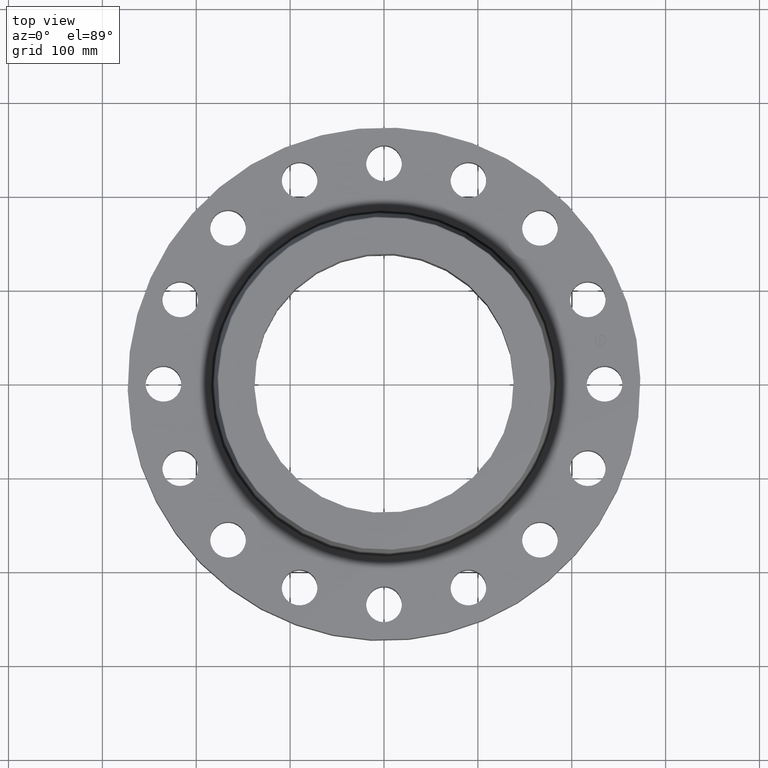
[diagram: clean part render]
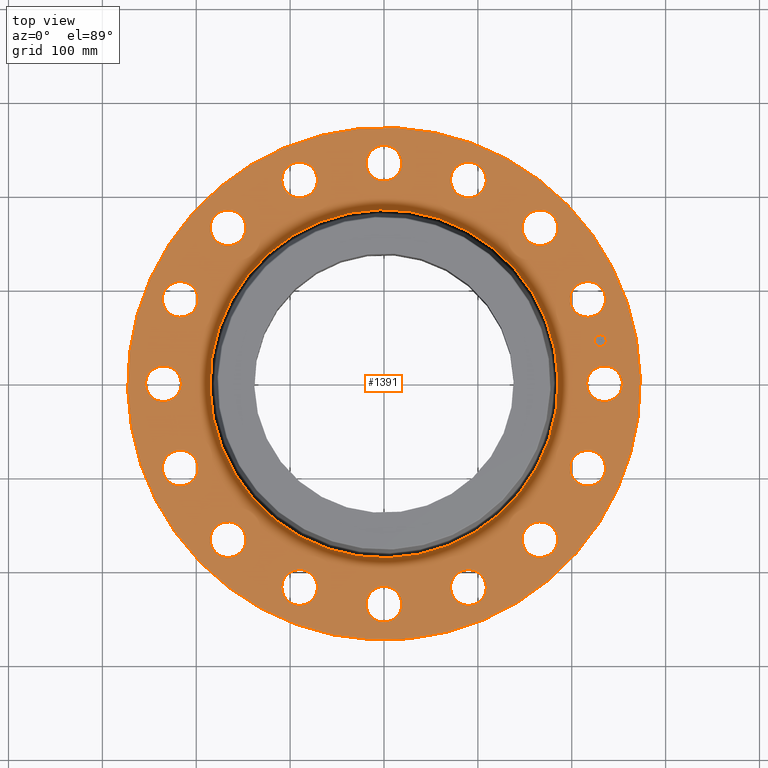
[diagram: same view with one face highlighted and labeled with its STEP entity id]
A machine part, top view. The second image highlights one B-rep face of the part: STEP entity #1391.
In plain terms, the highlighted planar face has unit normal (0, 0, -1).
Its self-contained STEP definition (entity closure, byte-faithful):
#65=AXIS2_PLACEMENT_3D('Circle Axis2P3D',#63,#64,$) ;
#82=AXIS2_PLACEMENT_3D('Circle Axis2P3D',#80,#81,$) ;
#115=AXIS2_PLACEMENT_3D('Circle Axis2P3D',#113,#114,$) ;
#139=AXIS2_PLACEMENT_3D('Circle Axis2P3D',#137,#138,$) ;
#156=AXIS2_PLACEMENT_3D('Circle Axis2P3D',#154,#155,$) ;
#191=AXIS2_PLACEMENT_3D('Circle Axis2P3D',#189,#190,$) ;
#672=AXIS2_PLACEMENT_3D('Circle Axis2P3D',#670,#671,$) ;
#684=AXIS2_PLACEMENT_3D('Circle Axis2P3D',#682,#683,$) ;
#715=AXIS2_PLACEMENT_3D('Circle Axis2P3D',#713,#714,$) ;
#727=AXIS2_PLACEMENT_3D('Circle Axis2P3D',#725,#726,$) ;
#758=AXIS2_PLACEMENT_3D('Circle Axis2P3D',#756,#757,$) ;
#770=AXIS2_PLACEMENT_3D('Circle Axis2P3D',#768,#769,$) ;
#801=AXIS2_PLACEMENT_3D('Circle Axis2P3D',#799,#800,$) ;
#813=AXIS2_PLACEMENT_3D('Circle Axis2P3D',#811,#812,$) ;
#844=AXIS2_PLACEMENT_3D('Circle Axis2P3D',#842,#843,$) ;
#856=AXIS2_PLACEMENT_3D('Circle Axis2P3D',#854,#855,$) ;
#887=AXIS2_PLACEMENT_3D('Circle Axis2P3D',#885,#886,$) ;
#899=AXIS2_PLACEMENT_3D('Circle Axis2P3D',#897,#898,$) ;
#930=AXIS2_PLACEMENT_3D('Circle Axis2P3D',#928,#929,$) ;
#942=AXIS2_PLACEMENT_3D('Circle Axis2P3D',#940,#941,$) ;
#973=AXIS2_PLACEMENT_3D('Circle Axis2P3D',#971,#972,$) ;
#985=AXIS2_PLACEMENT_3D('Circle Axis2P3D',#983,#984,$) ;
#1016=AXIS2_PLACEMENT_3D('Circle Axis2P3D',#1014,#1015,$) ;
#1028=AXIS2_PLACEMENT_3D('Circle Axis2P3D',#1026,#1027,$) ;
#1059=AXIS2_PLACEMENT_3D('Circle Axis2P3D',#1057,#1058,$) ;
#1071=AXIS2_PLACEMENT_3D('Circle Axis2P3D',#1069,#1070,$) ;
#1102=AXIS2_PLACEMENT_3D('Circle Axis2P3D',#1100,#1101,$) ;
#1114=AXIS2_PLACEMENT_3D('Circle Axis2P3D',#1112,#1113,$) ;
#1145=AXIS2_PLACEMENT_3D('Circle Axis2P3D',#1143,#1144,$) ;
#1157=AXIS2_PLACEMENT_3D('Circle Axis2P3D',#1155,#1156,$) ;
#1188=AXIS2_PLACEMENT_3D('Circle Axis2P3D',#1186,#1187,$) ;
#1200=AXIS2_PLACEMENT_3D('Circle Axis2P3D',#1198,#1199,$) ;
#1231=AXIS2_PLACEMENT_3D('Circle Axis2P3D',#1229,#1230,$) ;
#1243=AXIS2_PLACEMENT_3D('Circle Axis2P3D',#1241,#1242,$) ;
#1274=AXIS2_PLACEMENT_3D('Circle Axis2P3D',#1272,#1273,$) ;
#1286=AXIS2_PLACEMENT_3D('Circle Axis2P3D',#1284,#1285,$) ;
#1299=AXIS2_PLACEMENT_3D('Plane Axis2P3D',#1296,#1297,#1298) ;
#1375=AXIS2_PLACEMENT_3D('Circle Axis2P3D',#1373,#1374,$) ;
#1384=AXIS2_PLACEMENT_3D('Circle Axis2P3D',#1382,#1383,$) ;
#46=CARTESIAN_POINT('Vertex',(8.59181307862,0.359569153955,2.75000000001)) ;
#60=CARTESIAN_POINT('Vertex',(9.90818692146,-0.359569153955,2.75000000001)) ;
#63=CARTESIAN_POINT('Axis2P3D Location',(9.25000000004,0.,2.75000000001)) ;
#80=CARTESIAN_POINT('Axis2P3D Location',(9.25000000004,0.,2.75000000001)) ;
#110=CARTESIAN_POINT('Vertex',(-5.15382454002,-9.43401254036,2.75000000001)) ;
#113=CARTESIAN_POINT('Axis2P3D Location',(0.,0.,2.75000000001)) ;
#117=CARTESIAN_POINT('Vertex',(5.15382454002,9.43401254036,2.75000000001)) ;
#137=CARTESIAN_POINT('Axis2P3D Location',(0.,0.,2.75000000001)) ;
#154=CARTESIAN_POINT('Axis2P3D Location',(0.,0.,2.75000000001)) ;
#158=CARTESIAN_POINT('Vertex',(3.49997230245,6.40665632597,2.75000000001)) ;
#160=CARTESIAN_POINT('Vertex',(-3.49997230245,-6.40665632597,2.75000000001)) ;
#189=CARTESIAN_POINT('Axis2P3D Location',(0.,0.,2.75000000001)) ;
#660=CARTESIAN_POINT('Vertex',(-8.0754014085,2.9557459373,2.75000000001)) ;
#667=CARTESIAN_POINT('Vertex',(-9.01636994302,4.12389756148,2.75000000001)) ;
#670=CARTESIAN_POINT('Axis2P3D Location',(-8.54588567576,3.53982174939,2.75000000001)) ;
#682=CARTESIAN_POINT('Axis2P3D Location',(-8.54588567576,3.53982174939,2.75000000001)) ;
#703=CARTESIAN_POINT('Vertex',(6.32958307764,-5.82107550351,2.75000000001)) ;
#710=CARTESIAN_POINT('Vertex',(6.75189237436,-7.26039994849,2.75000000001)) ;
#713=CARTESIAN_POINT('Axis2P3D Location',(6.540737726,-6.540737726,2.75000000001)) ;
#725=CARTESIAN_POINT('Axis2P3D Location',(6.540737726,-6.540737726,2.75000000001)) ;
#746=CARTESIAN_POINT('Vertex',(-6.32958307764,5.82107550351,2.75000000001)) ;
#753=CARTESIAN_POINT('Vertex',(-6.75189237436,7.26039994849,2.75000000001)) ;
#756=CARTESIAN_POINT('Axis2P3D Location',(-6.540737726,6.540737726,2.75000000001)) ;
#768=CARTESIAN_POINT('Axis2P3D Location',(-6.540737726,6.540737726,2.75000000001)) ;
#789=CARTESIAN_POINT('Vertex',(3.62014310103,-7.80019909249,2.75000000001)) ;
#796=CARTESIAN_POINT('Vertex',(3.45950039776,-9.29157225904,2.75000000001)) ;
#799=CARTESIAN_POINT('Axis2P3D Location',(3.53982174939,-8.54588567576,2.75000000001)) ;
#811=CARTESIAN_POINT('Axis2P3D Location',(3.53982174939,-8.54588567576,2.75000000001)) ;
#832=CARTESIAN_POINT('Vertex',(-3.62014310103,7.80019909249,2.75000000001)) ;
#839=CARTESIAN_POINT('Vertex',(-3.45950039776,9.29157225904,2.75000000001)) ;
#842=CARTESIAN_POINT('Axis2P3D Location',(-3.53982174939,8.54588567576,2.75000000001)) ;
#854=CARTESIAN_POINT('Axis2P3D Location',(-3.53982174939,8.54588567576,2.75000000001)) ;
#875=CARTESIAN_POINT('Vertex',(0.359569153955,-8.59181307862,2.75000000001)) ;
#882=CARTESIAN_POINT('Vertex',(-0.359569153955,-9.90818692146,2.75000000001)) ;
#885=CARTESIAN_POINT('Axis2P3D Location',(5.66399144608E-016,-9.25000000004,2.75000000001)) ;
#897=CARTESIAN_POINT('Axis2P3D Location',(5.66399144608E-016,-9.25000000004,2.75000000001)) ;
#918=CARTESIAN_POINT('Vertex',(-0.359569153955,8.59181307862,2.75000000001)) ;
#925=CARTESIAN_POINT('Vertex',(0.359569153955,9.90818692146,2.75000000001)) ;
#928=CARTESIAN_POINT('Axis2P3D Location',(-1.69919743382E-015,9.25000000004,2.75000000001)) ;
#940=CARTESIAN_POINT('Axis2P3D Location',(-1.69919743382E-015,9.25000000004,2.75000000001)) ;
#961=CARTESIAN_POINT('Vertex',(-2.9557459373,-8.0754014085,2.75000000001)) ;
#968=CARTESIAN_POINT('Vertex',(-4.12389756148,-9.01636994302,2.75000000001)) ;
#971=CARTESIAN_POINT('Axis2P3D Location',(-3.53982174939,-8.54588567576,2.75000000001)) ;
#983=CARTESIAN_POINT('Axis2P3D Location',(-3.53982174939,-8.54588567576,2.75000000001)) ;
#1004=CARTESIAN_POINT('Vertex',(2.9557459373,8.0754014085,2.75000000001)) ;
#1011=CARTESIAN_POINT('Vertex',(4.12389756148,9.01636994302,2.75000000001)) ;
#1014=CARTESIAN_POINT('Axis2P3D Location',(3.53982174939,8.54588567576,2.75000000001)) ;
#1026=CARTESIAN_POINT('Axis2P3D Location',(3.53982174939,8.54588567576,2.75000000001)) ;
#1047=CARTESIAN_POINT('Vertex',(-5.82107550351,-6.32958307764,2.75000000001)) ;
#1054=CARTESIAN_POINT('Vertex',(-7.26039994849,-6.75189237436,2.75000000001)) ;
#1057=CARTESIAN_POINT('Axis2P3D Location',(-6.540737726,-6.540737726,2.75000000001)) ;
#1069=CARTESIAN_POINT('Axis2P3D Location',(-6.540737726,-6.540737726,2.75000000001)) ;
#1090=CARTESIAN_POINT('Vertex',(5.82107550351,6.32958307764,2.75000000001)) ;
#1097=CARTESIAN_POINT('Vertex',(7.26039994849,6.75189237436,2.75000000001)) ;
#1100=CARTESIAN_POINT('Axis2P3D Location',(6.540737726,6.540737726,2.75000000001)) ;
#1112=CARTESIAN_POINT('Axis2P3D Location',(6.540737726,6.540737726,2.75000000001)) ;
#1133=CARTESIAN_POINT('Vertex',(-7.80019909249,-3.62014310103,2.75000000001)) ;
#1140=CARTESIAN_POINT('Vertex',(-9.29157225904,-3.45950039776,2.75000000001)) ;
#1143=CARTESIAN_POINT('Axis2P3D Location',(-8.54588567576,-3.53982174939,2.75000000001)) ;
#1155=CARTESIAN_POINT('Axis2P3D Location',(-8.54588567576,-3.53982174939,2.75000000001)) ;
#1176=CARTESIAN_POINT('Vertex',(7.80019909249,3.62014310103,2.75000000001)) ;
#1183=CARTESIAN_POINT('Vertex',(9.29157225904,3.45950039776,2.75000000001)) ;
#1186=CARTESIAN_POINT('Axis2P3D Location',(8.54588567576,3.53982174939,2.75000000001)) ;
#1198=CARTESIAN_POINT('Axis2P3D Location',(8.54588567576,3.53982174939,2.75000000001)) ;
#1219=CARTESIAN_POINT('Vertex',(-8.59181307862,-0.359569153955,2.75000000001)) ;
#1226=CARTESIAN_POINT('Vertex',(-9.90818692146,0.359569153955,2.75000000001)) ;
#1229=CARTESIAN_POINT('Axis2P3D Location',(-9.25000000004,-1.13279828922E-015,2.75000000001)) ;
#1241=CARTESIAN_POINT('Axis2P3D Location',(-9.25000000004,-1.13279828922E-015,2.75000000001)) ;
#1262=CARTESIAN_POINT('Vertex',(8.0754014085,-2.9557459373,2.75000000001)) ;
#1269=CARTESIAN_POINT('Vertex',(9.01636994302,-4.12389756148,2.75000000001)) ;
#1272=CARTESIAN_POINT('Axis2P3D Location',(8.54588567576,-3.53982174939,2.75000000001)) ;
#1284=CARTESIAN_POINT('Axis2P3D Location',(8.54588567576,-3.53982174939,2.75000000001)) ;
#1296=CARTESIAN_POINT('Axis2P3D Location',(0.,10.75,2.75000000001)) ;
#1373=CARTESIAN_POINT('Axis2P3D Location',(9.07226384377,1.80458547866,2.75000000001)) ;
#1377=CARTESIAN_POINT('Vertex',(9.02397898907,2.04732983556,2.75000000001)) ;
#1379=CARTESIAN_POINT('Vertex',(9.12054869847,1.56184112176,2.75000000001)) ;
#1382=CARTESIAN_POINT('Axis2P3D Location',(9.07226384377,1.80458547866,2.75000000001)) ;
#64=DIRECTION('Axis2P3D Direction',(0.,-0.,-0.0393700787402)) ;
#81=DIRECTION('Axis2P3D Direction',(0.,-0.,-0.0393700787402)) ;
#114=DIRECTION('Axis2P3D Direction',(0.,0.,-0.0393700787402)) ;
#138=DIRECTION('Axis2P3D Direction',(0.,0.,-0.0393700787402)) ;
#155=DIRECTION('Axis2P3D Direction',(0.,0.,-0.0393700787402)) ;
#190=DIRECTION('Axis2P3D Direction',(0.,0.,-0.0393700787402)) ;
#671=DIRECTION('Axis2P3D Direction',(0.,0.,-0.0393700787402)) ;
#683=DIRECTION('Axis2P3D Direction',(0.,0.,-0.0393700787402)) ;
#714=DIRECTION('Axis2P3D Direction',(0.,-0.,-0.0393700787402)) ;
#726=DIRECTION('Axis2P3D Direction',(0.,-0.,-0.0393700787402)) ;
#757=DIRECTION('Axis2P3D Direction',(0.,0.,-0.0393700787402)) ;
#769=DIRECTION('Axis2P3D Direction',(0.,0.,-0.0393700787402)) ;
#800=DIRECTION('Axis2P3D Direction',(0.,-0.,-0.0393700787402)) ;
#812=DIRECTION('Axis2P3D Direction',(0.,-0.,-0.0393700787402)) ;
#843=DIRECTION('Axis2P3D Direction',(0.,0.,-0.0393700787402)) ;
#855=DIRECTION('Axis2P3D Direction',(0.,0.,-0.0393700787402)) ;
#886=DIRECTION('Axis2P3D Direction',(0.,-0.,-0.0393700787402)) ;
#898=DIRECTION('Axis2P3D Direction',(0.,-0.,-0.0393700787402)) ;
#929=DIRECTION('Axis2P3D Direction',(0.,0.,-0.0393700787402)) ;
#941=DIRECTION('Axis2P3D Direction',(0.,0.,-0.0393700787402)) ;
#972=DIRECTION('Axis2P3D Direction',(-0.,0.,-0.0393700787402)) ;
#984=DIRECTION('Axis2P3D Direction',(-0.,0.,-0.0393700787402)) ;
#1015=DIRECTION('Axis2P3D Direction',(0.,0.,-0.0393700787402)) ;
#1027=DIRECTION('Axis2P3D Direction',(0.,0.,-0.0393700787402)) ;
#1058=DIRECTION('Axis2P3D Direction',(-0.,0.,-0.0393700787402)) ;
#1070=DIRECTION('Axis2P3D Direction',(-0.,0.,-0.0393700787402)) ;
#1101=DIRECTION('Axis2P3D Direction',(0.,0.,-0.0393700787402)) ;
#1113=DIRECTION('Axis2P3D Direction',(0.,0.,-0.0393700787402)) ;
#1144=DIRECTION('Axis2P3D Direction',(-0.,0.,-0.0393700787402)) ;
#1156=DIRECTION('Axis2P3D Direction',(-0.,0.,-0.0393700787402)) ;
#1187=DIRECTION('Axis2P3D Direction',(0.,0.,-0.0393700787402)) ;
#1199=DIRECTION('Axis2P3D Direction',(0.,0.,-0.0393700787402)) ;
#1230=DIRECTION('Axis2P3D Direction',(-0.,0.,-0.0393700787402)) ;
#1242=DIRECTION('Axis2P3D Direction',(-0.,0.,-0.0393700787402)) ;
#1273=DIRECTION('Axis2P3D Direction',(0.,-0.,-0.0393700787402)) ;
#1285=DIRECTION('Axis2P3D Direction',(0.,-0.,-0.0393700787402)) ;
#1297=DIRECTION('Axis2P3D Direction',(0.,0.,-0.0393700787402)) ;
#1298=DIRECTION('Axis2P3D XDirection',(0.0393700787402,0.,0.)) ;
#1374=DIRECTION('Axis2P3D Direction',(0.,0.,-0.0393700787402)) ;
#1383=DIRECTION('Axis2P3D Direction',(0.,0.,-0.0393700787402)) ;
#1302=ORIENTED_EDGE('',*,*,#141,.F.) ;
#1303=ORIENTED_EDGE('',*,*,#119,.F.) ;
#1306=ORIENTED_EDGE('',*,*,#67,.T.) ;
#1307=ORIENTED_EDGE('',*,*,#84,.T.) ;
#1310=ORIENTED_EDGE('',*,*,#193,.T.) ;
#1311=ORIENTED_EDGE('',*,*,#162,.T.) ;
#1314=ORIENTED_EDGE('',*,*,#1288,.T.) ;
#1315=ORIENTED_EDGE('',*,*,#1276,.T.) ;
#1318=ORIENTED_EDGE('',*,*,#729,.T.) ;
#1319=ORIENTED_EDGE('',*,*,#717,.T.) ;
#1322=ORIENTED_EDGE('',*,*,#815,.T.) ;
#1323=ORIENTED_EDGE('',*,*,#803,.T.) ;
#1326=ORIENTED_EDGE('',*,*,#901,.T.) ;
#1327=ORIENTED_EDGE('',*,*,#889,.T.) ;
#1330=ORIENTED_EDGE('',*,*,#987,.T.) ;
#1331=ORIENTED_EDGE('',*,*,#975,.T.) ;
#1334=ORIENTED_EDGE('',*,*,#1073,.T.) ;
#1335=ORIENTED_EDGE('',*,*,#1061,.T.) ;
#1338=ORIENTED_EDGE('',*,*,#1159,.T.) ;
#1339=ORIENTED_EDGE('',*,*,#1147,.T.) ;
#1342=ORIENTED_EDGE('',*,*,#1245,.T.) ;
#1343=ORIENTED_EDGE('',*,*,#1233,.T.) ;
#1346=ORIENTED_EDGE('',*,*,#686,.T.) ;
#1347=ORIENTED_EDGE('',*,*,#674,.T.) ;
#1350=ORIENTED_EDGE('',*,*,#772,.T.) ;
#1351=ORIENTED_EDGE('',*,*,#760,.T.) ;
#1354=ORIENTED_EDGE('',*,*,#858,.T.) ;
#1355=ORIENTED_EDGE('',*,*,#846,.T.) ;
#1358=ORIENTED_EDGE('',*,*,#944,.T.) ;
#1359=ORIENTED_EDGE('',*,*,#932,.T.) ;
#1362=ORIENTED_EDGE('',*,*,#1030,.T.) ;
#1363=ORIENTED_EDGE('',*,*,#1018,.T.) ;
#1366=ORIENTED_EDGE('',*,*,#1116,.T.) ;
#1367=ORIENTED_EDGE('',*,*,#1104,.T.) ;
#1370=ORIENTED_EDGE('',*,*,#1202,.T.) ;
#1371=ORIENTED_EDGE('',*,*,#1190,.T.) ;
#1388=ORIENTED_EDGE('',*,*,#1381,.T.) ;
#1389=ORIENTED_EDGE('',*,*,#1386,.T.) ;
#1308=FACE_BOUND('',#1305,.T.) ;
#1312=FACE_BOUND('',#1309,.T.) ;
#1316=FACE_BOUND('',#1313,.T.) ;
#1320=FACE_BOUND('',#1317,.T.) ;
#1324=FACE_BOUND('',#1321,.T.) ;
#1328=FACE_BOUND('',#1325,.T.) ;
#1332=FACE_BOUND('',#1329,.T.) ;
#1336=FACE_BOUND('',#1333,.T.) ;
#1340=FACE_BOUND('',#1337,.T.) ;
#1344=FACE_BOUND('',#1341,.T.) ;
#1348=FACE_BOUND('',#1345,.T.) ;
#1352=FACE_BOUND('',#1349,.T.) ;
#1356=FACE_BOUND('',#1353,.T.) ;
#1360=FACE_BOUND('',#1357,.T.) ;
#1364=FACE_BOUND('',#1361,.T.) ;
#1368=FACE_BOUND('',#1365,.T.) ;
#1372=FACE_BOUND('',#1369,.T.) ;
#1390=FACE_BOUND('',#1387,.T.) ;
#1391=ADVANCED_FACE('PartBody',(#1304,#1308,#1312,#1316,#1320,#1324,#1328,#1332,#1336,#1340,#1344,#1348,#1352,#1356,#1360,#1364,#1368,#1372,#1390),#1300,.F.) ;
#66=CIRCLE('generated circle',#65,0.750000000003) ;
#83=CIRCLE('generated circle',#82,0.750000000003) ;
#116=CIRCLE('generated circle',#115,10.75) ;
#140=CIRCLE('generated circle',#139,10.75) ;
#157=CIRCLE('generated circle',#156,7.3003459779) ;
#192=CIRCLE('generated circle',#191,7.3003459779) ;
#673=CIRCLE('generated circle',#672,0.750000000003) ;
#685=CIRCLE('generated circle',#684,0.750000000003) ;
#716=CIRCLE('generated circle',#715,0.750000000003) ;
#728=CIRCLE('generated circle',#727,0.750000000003) ;
#759=CIRCLE('generated circle',#758,0.750000000003) ;
#771=CIRCLE('generated circle',#770,0.750000000003) ;
#802=CIRCLE('generated circle',#801,0.750000000003) ;
#814=CIRCLE('generated circle',#813,0.750000000003) ;
#845=CIRCLE('generated circle',#844,0.750000000003) ;
#857=CIRCLE('generated circle',#856,0.750000000003) ;
#888=CIRCLE('generated circle',#887,0.750000000003) ;
#900=CIRCLE('generated circle',#899,0.750000000003) ;
#931=CIRCLE('generated circle',#930,0.750000000003) ;
#943=CIRCLE('generated circle',#942,0.750000000003) ;
#974=CIRCLE('generated circle',#973,0.750000000003) ;
#986=CIRCLE('generated circle',#985,0.750000000003) ;
#1017=CIRCLE('generated circle',#1016,0.750000000003) ;
#1029=CIRCLE('generated circle',#1028,0.750000000003) ;
#1060=CIRCLE('generated circle',#1059,0.750000000003) ;
#1072=CIRCLE('generated circle',#1071,0.750000000003) ;
#1103=CIRCLE('generated circle',#1102,0.750000000003) ;
#1115=CIRCLE('generated circle',#1114,0.750000000003) ;
#1146=CIRCLE('generated circle',#1145,0.750000000003) ;
#1158=CIRCLE('generated circle',#1157,0.750000000003) ;
#1189=CIRCLE('generated circle',#1188,0.750000000003) ;
#1201=CIRCLE('generated circle',#1200,0.750000000003) ;
#1232=CIRCLE('generated circle',#1231,0.750000000003) ;
#1244=CIRCLE('generated circle',#1243,0.750000000003) ;
#1275=CIRCLE('generated circle',#1274,0.750000000003) ;
#1287=CIRCLE('generated circle',#1286,0.750000000003) ;
#1376=CIRCLE('generated circle',#1375,0.247500000001) ;
#1385=CIRCLE('generated circle',#1384,0.247500000001) ;
#67=EDGE_CURVE('',#47,#61,#66,.T.) ;
#84=EDGE_CURVE('',#61,#47,#83,.T.) ;
#119=EDGE_CURVE('',#111,#118,#116,.T.) ;
#141=EDGE_CURVE('',#118,#111,#140,.T.) ;
#162=EDGE_CURVE('',#159,#161,#157,.T.) ;
#193=EDGE_CURVE('',#161,#159,#192,.T.) ;
#674=EDGE_CURVE('',#661,#668,#673,.T.) ;
#686=EDGE_CURVE('',#668,#661,#685,.T.) ;
#717=EDGE_CURVE('',#704,#711,#716,.T.) ;
#729=EDGE_CURVE('',#711,#704,#728,.T.) ;
#760=EDGE_CURVE('',#747,#754,#759,.T.) ;
#772=EDGE_CURVE('',#754,#747,#771,.T.) ;
#803=EDGE_CURVE('',#790,#797,#802,.T.) ;
#815=EDGE_CURVE('',#797,#790,#814,.T.) ;
#846=EDGE_CURVE('',#833,#840,#845,.T.) ;
#858=EDGE_CURVE('',#840,#833,#857,.T.) ;
#889=EDGE_CURVE('',#876,#883,#888,.T.) ;
#901=EDGE_CURVE('',#883,#876,#900,.T.) ;
#932=EDGE_CURVE('',#919,#926,#931,.T.) ;
#944=EDGE_CURVE('',#926,#919,#943,.T.) ;
#975=EDGE_CURVE('',#962,#969,#974,.T.) ;
#987=EDGE_CURVE('',#969,#962,#986,.T.) ;
#1018=EDGE_CURVE('',#1005,#1012,#1017,.T.) ;
#1030=EDGE_CURVE('',#1012,#1005,#1029,.T.) ;
#1061=EDGE_CURVE('',#1048,#1055,#1060,.T.) ;
#1073=EDGE_CURVE('',#1055,#1048,#1072,.T.) ;
#1104=EDGE_CURVE('',#1091,#1098,#1103,.T.) ;
#1116=EDGE_CURVE('',#1098,#1091,#1115,.T.) ;
#1147=EDGE_CURVE('',#1134,#1141,#1146,.T.) ;
#1159=EDGE_CURVE('',#1141,#1134,#1158,.T.) ;
#1190=EDGE_CURVE('',#1177,#1184,#1189,.T.) ;
#1202=EDGE_CURVE('',#1184,#1177,#1201,.T.) ;
#1233=EDGE_CURVE('',#1220,#1227,#1232,.T.) ;
#1245=EDGE_CURVE('',#1227,#1220,#1244,.T.) ;
#1276=EDGE_CURVE('',#1263,#1270,#1275,.T.) ;
#1288=EDGE_CURVE('',#1270,#1263,#1287,.T.) ;
#1381=EDGE_CURVE('',#1378,#1380,#1376,.T.) ;
#1386=EDGE_CURVE('',#1380,#1378,#1385,.T.) ;
#1301=EDGE_LOOP('',(#1302,#1303)) ;
#1305=EDGE_LOOP('',(#1306,#1307)) ;
#1309=EDGE_LOOP('',(#1310,#1311)) ;
#1313=EDGE_LOOP('',(#1314,#1315)) ;
#1317=EDGE_LOOP('',(#1318,#1319)) ;
#1321=EDGE_LOOP('',(#1322,#1323)) ;
#1325=EDGE_LOOP('',(#1326,#1327)) ;
#1329=EDGE_LOOP('',(#1330,#1331)) ;
#1333=EDGE_LOOP('',(#1334,#1335)) ;
#1337=EDGE_LOOP('',(#1338,#1339)) ;
#1341=EDGE_LOOP('',(#1342,#1343)) ;
#1345=EDGE_LOOP('',(#1346,#1347)) ;
#1349=EDGE_LOOP('',(#1350,#1351)) ;
#1353=EDGE_LOOP('',(#1354,#1355)) ;
#1357=EDGE_LOOP('',(#1358,#1359)) ;
#1361=EDGE_LOOP('',(#1362,#1363)) ;
#1365=EDGE_LOOP('',(#1366,#1367)) ;
#1369=EDGE_LOOP('',(#1370,#1371)) ;
#1387=EDGE_LOOP('',(#1388,#1389)) ;
#1304=FACE_OUTER_BOUND('',#1301,.T.) ;
#1300=PLANE('',#1299) ;
#47=VERTEX_POINT('',#46) ;
#61=VERTEX_POINT('',#60) ;
#111=VERTEX_POINT('',#110) ;
#118=VERTEX_POINT('',#117) ;
#159=VERTEX_POINT('',#158) ;
#161=VERTEX_POINT('',#160) ;
#661=VERTEX_POINT('',#660) ;
#668=VERTEX_POINT('',#667) ;
#704=VERTEX_POINT('',#703) ;
#711=VERTEX_POINT('',#710) ;
#747=VERTEX_POINT('',#746) ;
#754=VERTEX_POINT('',#753) ;
#790=VERTEX_POINT('',#789) ;
#797=VERTEX_POINT('',#796) ;
#833=VERTEX_POINT('',#832) ;
#840=VERTEX_POINT('',#839) ;
#876=VERTEX_POINT('',#875) ;
#883=VERTEX_POINT('',#882) ;
#919=VERTEX_POINT('',#918) ;
#926=VERTEX_POINT('',#925) ;
#962=VERTEX_POINT('',#961) ;
#969=VERTEX_POINT('',#968) ;
#1005=VERTEX_POINT('',#1004) ;
#1012=VERTEX_POINT('',#1011) ;
#1048=VERTEX_POINT('',#1047) ;
#1055=VERTEX_POINT('',#1054) ;
#1091=VERTEX_POINT('',#1090) ;
#1098=VERTEX_POINT('',#1097) ;
#1134=VERTEX_POINT('',#1133) ;
#1141=VERTEX_POINT('',#1140) ;
#1177=VERTEX_POINT('',#1176) ;
#1184=VERTEX_POINT('',#1183) ;
#1220=VERTEX_POINT('',#1219) ;
#1227=VERTEX_POINT('',#1226) ;
#1263=VERTEX_POINT('',#1262) ;
#1270=VERTEX_POINT('',#1269) ;
#1378=VERTEX_POINT('',#1377) ;
#1380=VERTEX_POINT('',#1379) ;